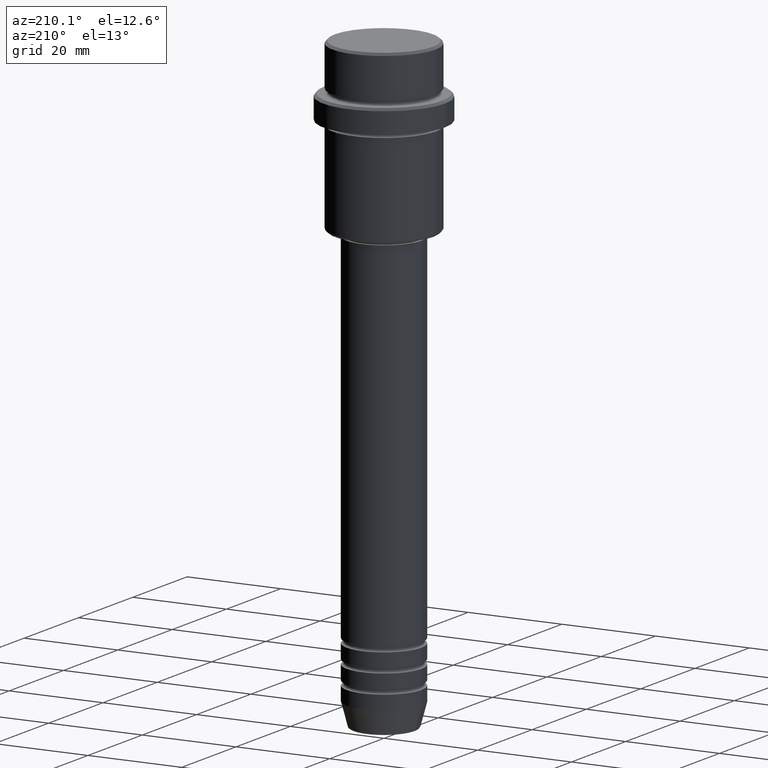
[diagram: clean part render]
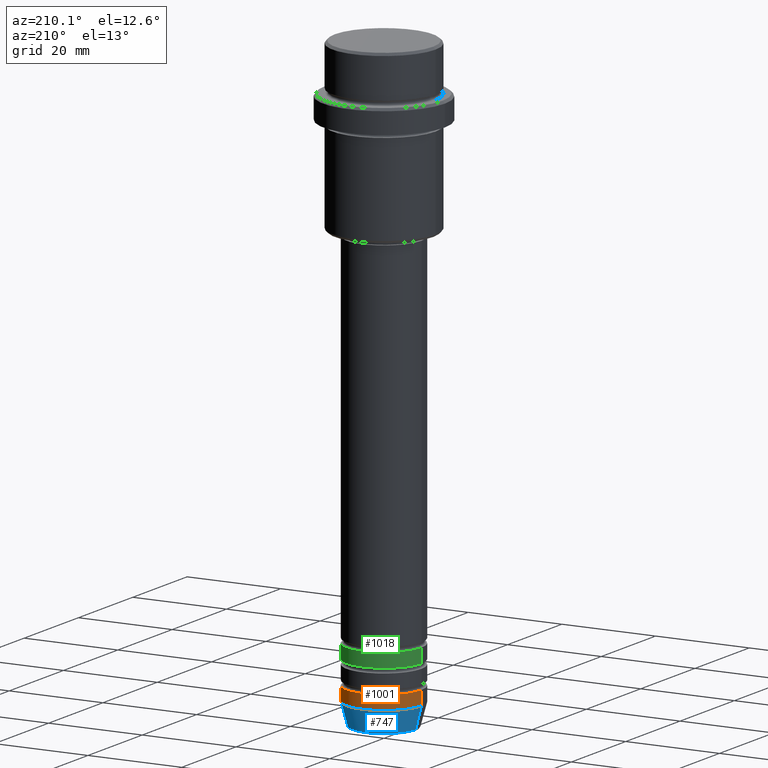
[diagram: same view with three faces highlighted in distinct colors, each labeled with its STEP entity id]
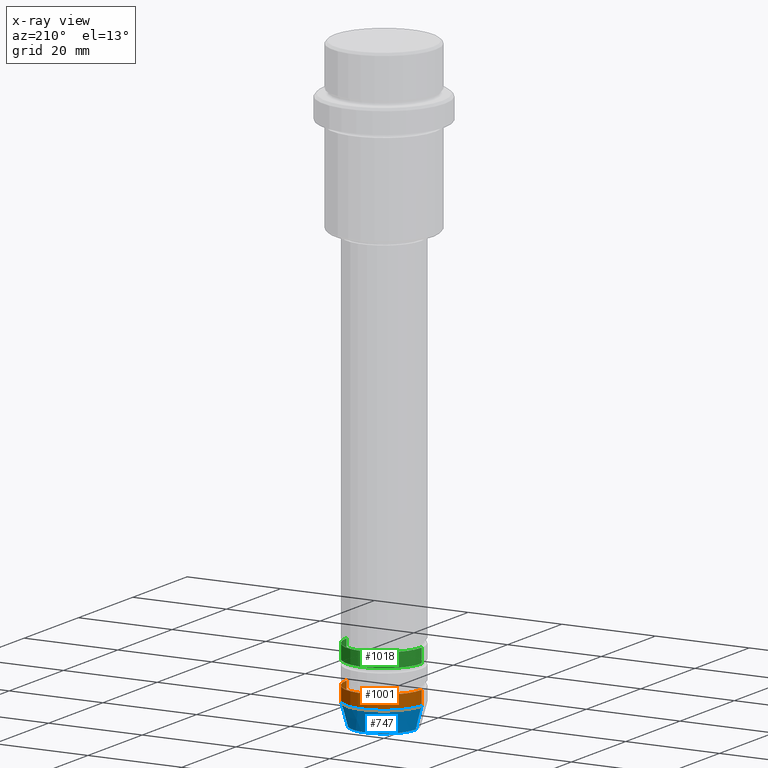
[diagram: x-ray of the same camera — body ghosted, the three highlighted faces saturated]
A machine part, auxiliary view with three faces highlighted in distinct colors.
The next image is the same camera in x-ray (body ghosted, the three faces saturated) — at least one of them is partly hidden behind the body in this view.
Their STEP definitions:

[orange] entity #1001 — the highlighted cylindrical surface (partial cylindrical patch) has radius 8 mm, axis along (-0, -0, 1).
#7 = VECTOR ( 'NONE', #20, 1000.000000000000000 ) ;
#20 = DIRECTION ( 'NONE',  ( -0.000000000000000000, -0.000000000000000000, 1.000000000000000000 ) ) ;
#24 = CARTESIAN_POINT ( 'NONE',  ( 0.000000000000000000, 0.000000000000000000, 0.000000000000000000 ) ) ;
#35 = LINE ( 'NONE', #1135, #7 ) ;
#60 = DIRECTION ( 'NONE',  ( -0.000000000000000000, -0.000000000000000000, 1.000000000000000000 ) ) ;
#78 = CARTESIAN_POINT ( 'NONE',  ( 8.000000000000000000, 0.000000000000000000, 0.000000000000000000 ) ) ;
#177 = CARTESIAN_POINT ( 'NONE',  ( 0.000000000000000000, 0.000000000000000000, -125.0000000000000000 ) ) ;
#195 = VERTEX_POINT ( 'NONE', #1223 ) ;
#208 = ORIENTED_EDGE ( 'NONE', *, *, #892, .F. ) ;
#254 = CYLINDRICAL_SURFACE ( 'NONE', #654, 8.000000000000000000 ) ;
#358 = DIRECTION ( 'NONE',  ( -0.000000000000000000, -0.000000000000000000, 1.000000000000000000 ) ) ;
#373 = ORIENTED_EDGE ( 'NONE', *, *, #848, .F. ) ;
#413 = ORIENTED_EDGE ( 'NONE', *, *, #1249, .T. ) ;
#450 = AXIS2_PLACEMENT_3D ( 'NONE', #177, #499, #944 ) ;
#458 = VERTEX_POINT ( 'NONE', #1304 ) ;
#471 = EDGE_CURVE ( 'NONE', #458, #1060, #35, .T. ) ;
#499 = DIRECTION ( 'NONE',  ( -0.000000000000000000, -0.000000000000000000, 1.000000000000000000 ) ) ;
#548 = DIRECTION ( 'NONE',  ( 1.000000000000000000, 0.000000000000000000, 0.000000000000000000 ) ) ;
#593 = CARTESIAN_POINT ( 'NONE',  ( 8.000000000000000000, 0.000000000000000000, -125.0000000000000000 ) ) ;
#631 = CARTESIAN_POINT ( 'NONE',  ( 0.000000000000000000, 0.000000000000000000, -122.0000000000000000 ) ) ;
#654 = AXIS2_PLACEMENT_3D ( 'NONE', #24, #358, #785 ) ;
#785 = DIRECTION ( 'NONE',  ( 1.000000000000000000, 0.000000000000000000, 0.000000000000000000 ) ) ;
#848 = EDGE_CURVE ( 'NONE', #1170, #195, #947, .T. ) ;
#892 = EDGE_CURVE ( 'NONE', #195, #1060, #1115, .T. ) ;
#944 = DIRECTION ( 'NONE',  ( 1.000000000000000000, 0.000000000000000000, 0.000000000000000000 ) ) ;
#947 = LINE ( 'NONE', #78, #1064 ) ;
#1001 = ADVANCED_FACE ( 'NONE', ( #1349 ), #254, .T. ) ;
#1060 = VERTEX_POINT ( 'NONE', #1133 ) ;
#1064 = VECTOR ( 'NONE', #60, 1000.000000000000000 ) ;
#1073 = DIRECTION ( 'NONE',  ( -0.000000000000000000, -0.000000000000000000, 1.000000000000000000 ) ) ;
#1080 = EDGE_LOOP ( 'NONE', ( #413, #1122, #208, #373 ) ) ;
#1115 = CIRCLE ( 'NONE', #1225, 8.000000000000000000 ) ;
#1122 = ORIENTED_EDGE ( 'NONE', *, *, #471, .T. ) ;
#1133 = CARTESIAN_POINT ( 'NONE',  ( -8.000000000000000000, 9.797174393178825657E-16, -122.0000000000000000 ) ) ;
#1135 = CARTESIAN_POINT ( 'NONE',  ( -8.000000000000000000, 9.797174393178825657E-16, 0.000000000000000000 ) ) ;
#1170 = VERTEX_POINT ( 'NONE', #593 ) ;
#1223 = CARTESIAN_POINT ( 'NONE',  ( 8.000000000000000000, 0.000000000000000000, -122.0000000000000000 ) ) ;
#1225 = AXIS2_PLACEMENT_3D ( 'NONE', #631, #1073, #548 ) ;
#1249 = EDGE_CURVE ( 'NONE', #1170, #458, #1404, .T. ) ;
#1304 = CARTESIAN_POINT ( 'NONE',  ( -8.000000000000000000, 9.797174393178825657E-16, -125.0000000000000000 ) ) ;
#1349 = FACE_OUTER_BOUND ( 'NONE', #1080, .T. ) ;
#1404 = CIRCLE ( 'NONE', #450, 8.000000000000000000 ) ;

[blue] entity #747 — the highlighted conical surface has half-angle 15 deg.
#3 = EDGE_CURVE ( 'NONE', #440, #458, #1077, .T. ) ;
#80 = CIRCLE ( 'NONE', #887, 6.759553456999433330 ) ;
#125 = ORIENTED_EDGE ( 'NONE', *, *, #275, .F. ) ;
#142 = CARTESIAN_POINT ( 'NONE',  ( -6.759553456999433330, 9.037619948979304241E-16, -129.6294095225512422 ) ) ;
#177 = CARTESIAN_POINT ( 'NONE',  ( 0.000000000000000000, 0.000000000000000000, -125.0000000000000000 ) ) ;
#185 = EDGE_LOOP ( 'NONE', ( #975, #1393, #895, #125 ) ) ;
#189 = CONICAL_SURFACE ( 'NONE', #1315, 8.000000000000000000, 0.2617993877991500740 ) ;
#275 = EDGE_CURVE ( 'NONE', #624, #1170, #1033, .T. ) ;
#335 = DIRECTION ( 'NONE',  ( -0.000000000000000000, -0.000000000000000000, 1.000000000000000000 ) ) ;
#414 = CARTESIAN_POINT ( 'NONE',  ( -8.000000000000000000, 9.797174393178825657E-16, -125.0000000000000000 ) ) ;
#440 = VERTEX_POINT ( 'NONE', #142 ) ;
#450 = AXIS2_PLACEMENT_3D ( 'NONE', #177, #499, #944 ) ;
#458 = VERTEX_POINT ( 'NONE', #1304 ) ;
#499 = DIRECTION ( 'NONE',  ( -0.000000000000000000, -0.000000000000000000, 1.000000000000000000 ) ) ;
#515 = CARTESIAN_POINT ( 'NONE',  ( 0.000000000000000000, 0.000000000000000000, -129.6294095225512422 ) ) ;
#575 = DIRECTION ( 'NONE',  ( 1.000000000000000000, 0.000000000000000000, 0.000000000000000000 ) ) ;
#593 = CARTESIAN_POINT ( 'NONE',  ( 8.000000000000000000, 0.000000000000000000, -125.0000000000000000 ) ) ;
#600 = CARTESIAN_POINT ( 'NONE',  ( 6.759553456999433330, 0.000000000000000000, -129.6294095225512422 ) ) ;
#624 = VERTEX_POINT ( 'NONE', #600 ) ;
#747 = ADVANCED_FACE ( 'NONE', ( #1326 ), #189, .T. ) ;
#767 = DIRECTION ( 'NONE',  ( 1.000000000000000000, 0.000000000000000000, 0.000000000000000000 ) ) ;
#811 = CARTESIAN_POINT ( 'NONE',  ( 0.000000000000000000, 0.000000000000000000, -125.0000000000000000 ) ) ;
#887 = AXIS2_PLACEMENT_3D ( 'NONE', #515, #335, #767 ) ;
#895 = ORIENTED_EDGE ( 'NONE', *, *, #1249, .F. ) ;
#936 = CARTESIAN_POINT ( 'NONE',  ( 8.000000000000000000, 0.000000000000000000, -125.0000000000000000 ) ) ;
#944 = DIRECTION ( 'NONE',  ( 1.000000000000000000, 0.000000000000000000, 0.000000000000000000 ) ) ;
#975 = ORIENTED_EDGE ( 'NONE', *, *, #1366, .T. ) ;
#1033 = LINE ( 'NONE', #936, #1282 ) ;
#1070 = DIRECTION ( 'NONE',  ( -0.2588190451025213501, 3.169619151431772337E-17, 0.9659258262890680902 ) ) ;
#1077 = LINE ( 'NONE', #414, #1369 ) ;
#1128 = DIRECTION ( 'NONE',  ( -0.000000000000000000, -0.000000000000000000, 1.000000000000000000 ) ) ;
#1142 = DIRECTION ( 'NONE',  ( 0.2588190451025213501, 0.000000000000000000, 0.9659258262890680902 ) ) ;
#1170 = VERTEX_POINT ( 'NONE', #593 ) ;
#1249 = EDGE_CURVE ( 'NONE', #1170, #458, #1404, .T. ) ;
#1282 = VECTOR ( 'NONE', #1142, 1000.000000000000000 ) ;
#1304 = CARTESIAN_POINT ( 'NONE',  ( -8.000000000000000000, 9.797174393178825657E-16, -125.0000000000000000 ) ) ;
#1315 = AXIS2_PLACEMENT_3D ( 'NONE', #811, #1128, #575 ) ;
#1326 = FACE_OUTER_BOUND ( 'NONE', #185, .T. ) ;
#1366 = EDGE_CURVE ( 'NONE', #624, #440, #80, .T. ) ;
#1369 = VECTOR ( 'NONE', #1070, 1000.000000000000000 ) ;
#1393 = ORIENTED_EDGE ( 'NONE', *, *, #3, .T. ) ;
#1404 = CIRCLE ( 'NONE', #450, 8.000000000000000000 ) ;

[green] entity #1018 — the highlighted cylindrical surface (partial cylindrical patch) has radius 8 mm, axis along (-0, -0, 1).
#13 = CARTESIAN_POINT ( 'NONE',  ( -8.000000000000000000, 9.797174393178825657E-16, -113.9999999999998863 ) ) ;
#43 = EDGE_LOOP ( 'NONE', ( #526, #497, #870, #87 ) ) ;
#87 = ORIENTED_EDGE ( 'NONE', *, *, #493, .F. ) ;
#95 = VERTEX_POINT ( 'NONE', #252 ) ;
#114 = VERTEX_POINT ( 'NONE', #995 ) ;
#136 = CARTESIAN_POINT ( 'NONE',  ( -8.000000000000000000, 9.797174393178825657E-16, -116.9999999999998863 ) ) ;
#139 = FACE_OUTER_BOUND ( 'NONE', #43, .T. ) ;
#163 = CARTESIAN_POINT ( 'NONE',  ( 8.000000000000000000, 0.000000000000000000, 0.000000000000000000 ) ) ;
#174 = VERTEX_POINT ( 'NONE', #13 ) ;
#199 = DIRECTION ( 'NONE',  ( 1.000000000000000000, 0.000000000000000000, 0.000000000000000000 ) ) ;
#239 = CIRCLE ( 'NONE', #504, 8.000000000000000000 ) ;
#252 = CARTESIAN_POINT ( 'NONE',  ( 8.000000000000000000, 0.000000000000000000, -113.9999999999998863 ) ) ;
#256 = DIRECTION ( 'NONE',  ( -0.000000000000000000, -0.000000000000000000, 1.000000000000000000 ) ) ;
#434 = CARTESIAN_POINT ( 'NONE',  ( 0.000000000000000000, 0.000000000000000000, -116.9999999999998863 ) ) ;
#435 = EDGE_CURVE ( 'NONE', #95, #174, #766, .T. ) ;
#445 = EDGE_CURVE ( 'NONE', #114, #459, #239, .T. ) ;
#456 = DIRECTION ( 'NONE',  ( 1.000000000000000000, 0.000000000000000000, 0.000000000000000000 ) ) ;
#459 = VERTEX_POINT ( 'NONE', #136 ) ;
#493 = EDGE_CURVE ( 'NONE', #114, #95, #1151, .T. ) ;
#497 = ORIENTED_EDGE ( 'NONE', *, *, #875, .T. ) ;
#504 = AXIS2_PLACEMENT_3D ( 'NONE', #434, #256, #970 ) ;
#526 = ORIENTED_EDGE ( 'NONE', *, *, #445, .T. ) ;
#533 = AXIS2_PLACEMENT_3D ( 'NONE', #893, #1220, #456 ) ;
#594 = LINE ( 'NONE', #1038, #1353 ) ;
#598 = DIRECTION ( 'NONE',  ( -0.000000000000000000, -0.000000000000000000, 1.000000000000000000 ) ) ;
#676 = CYLINDRICAL_SURFACE ( 'NONE', #533, 8.000000000000000000 ) ;
#691 = VECTOR ( 'NONE', #1346, 1000.000000000000000 ) ;
#744 = CARTESIAN_POINT ( 'NONE',  ( 0.000000000000000000, 0.000000000000000000, -113.9999999999998863 ) ) ;
#766 = CIRCLE ( 'NONE', #1136, 8.000000000000000000 ) ;
#870 = ORIENTED_EDGE ( 'NONE', *, *, #435, .F. ) ;
#875 = EDGE_CURVE ( 'NONE', #459, #174, #594, .T. ) ;
#893 = CARTESIAN_POINT ( 'NONE',  ( 0.000000000000000000, 0.000000000000000000, 0.000000000000000000 ) ) ;
#970 = DIRECTION ( 'NONE',  ( 1.000000000000000000, 0.000000000000000000, 0.000000000000000000 ) ) ;
#995 = CARTESIAN_POINT ( 'NONE',  ( 8.000000000000000000, 0.000000000000000000, -116.9999999999998863 ) ) ;
#1018 = ADVANCED_FACE ( 'NONE', ( #139 ), #676, .T. ) ;
#1038 = CARTESIAN_POINT ( 'NONE',  ( -8.000000000000000000, 9.797174393178825657E-16, 0.000000000000000000 ) ) ;
#1136 = AXIS2_PLACEMENT_3D ( 'NONE', #744, #1187, #199 ) ;
#1151 = LINE ( 'NONE', #163, #691 ) ;
#1187 = DIRECTION ( 'NONE',  ( -0.000000000000000000, -0.000000000000000000, 1.000000000000000000 ) ) ;
#1220 = DIRECTION ( 'NONE',  ( -0.000000000000000000, -0.000000000000000000, 1.000000000000000000 ) ) ;
#1346 = DIRECTION ( 'NONE',  ( -0.000000000000000000, -0.000000000000000000, 1.000000000000000000 ) ) ;
#1353 = VECTOR ( 'NONE', #598, 1000.000000000000000 ) ;